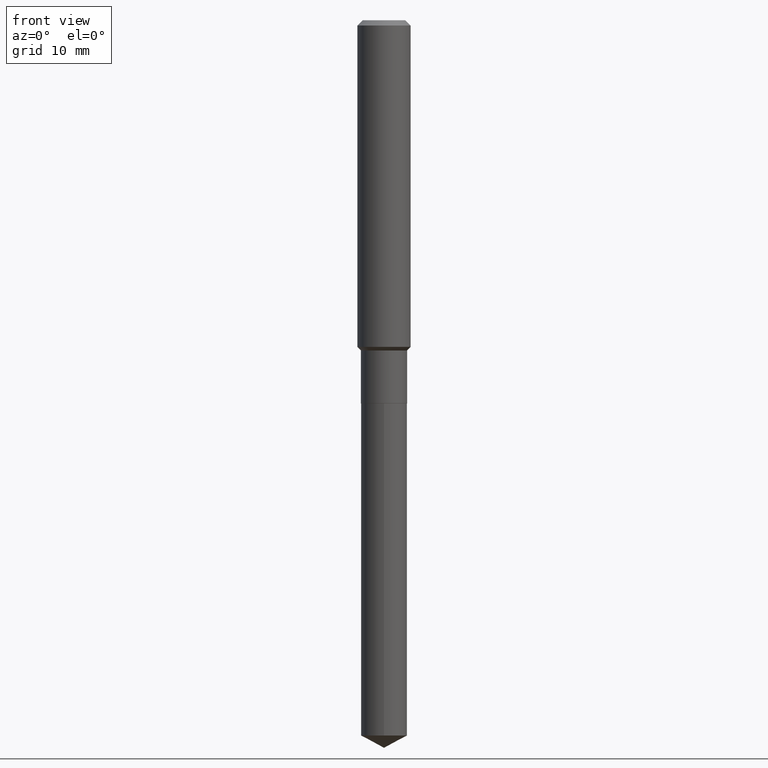
[diagram: clean part render]
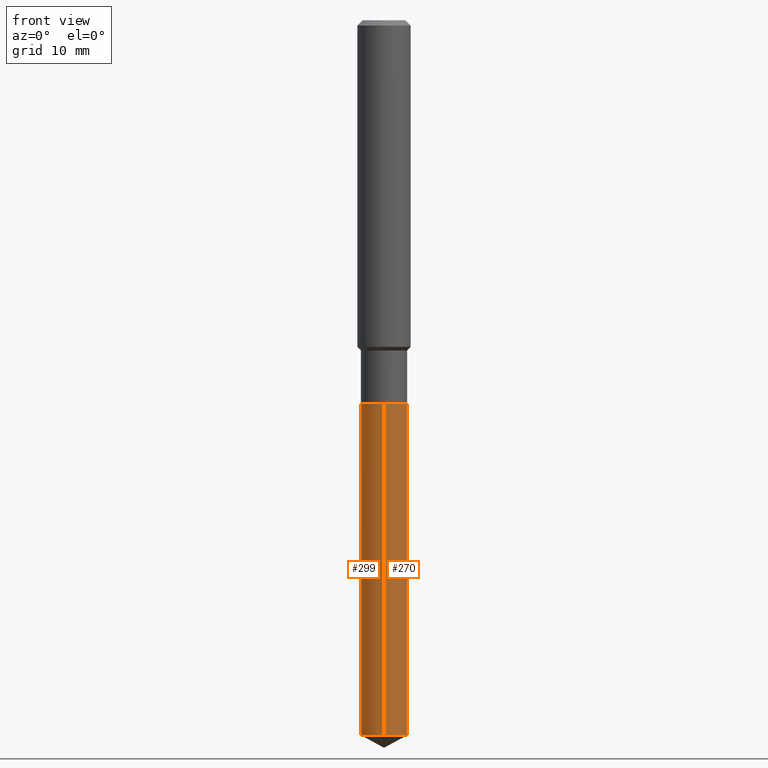
[diagram: same view with one multi-face feature highlighted, each face labeled with its STEP entity id]
A machine part, front view. The highlighted faces form ONE feature: a constant-radius fillet chain: 2 tangent blend faces with common blend radius 2.5997 mm. The faces share edges in the B-rep.
Their STEP definitions:
[1] entity #270 (Cylinder):
#10 = EDGE_CURVE ( 'NONE', #281, #252, #254, .T. ) ;
#27 = CARTESIAN_POINT ( 'NONE',  ( 4.159008798679061688E-29, -5.937962312970537319E-15, -1.700699999999999878 ) ) ;
#49 = DIRECTION ( 'NONE',  ( -2.445459379271598071E-29, 3.491494838719879691E-15, 1.000000000000000000 ) ) ;
#51 = DIRECTION ( 'NONE',  ( -6.982962677686265922E-15, -1.000000000000000000, 2.669123589315352370E-15 ) ) ;
#59 = EDGE_LOOP ( 'NONE', ( #205, #182, #116, #330 ) ) ;
#62 = DIRECTION ( 'NONE',  ( -2.445459379271598071E-29, 3.491494838719879691E-15, 1.000000000000000000 ) ) ;
#71 = CARTESIAN_POINT ( 'NONE',  ( 7.272404900505040294E-16, 0.1023499999999940568, -1.700700000000000323 ) ) ;
#75 = AXIS2_PLACEMENT_3D ( 'NONE', #458, #49, #277 ) ;
#116 = ORIENTED_EDGE ( 'NONE', *, *, #10, .F. ) ;
#123 = DIRECTION ( 'NONE',  ( -2.445459379271598071E-29, 3.491494838719879691E-15, 1.000000000000000000 ) ) ;
#146 = CYLINDRICAL_SURFACE ( 'NONE', #230, 0.1023499999999999965 ) ;
#175 = FACE_OUTER_BOUND ( 'NONE', #59, .T. ) ;
#182 = ORIENTED_EDGE ( 'NONE', *, *, #368, .T. ) ;
#183 = DIRECTION ( 'NONE',  ( -6.982962677686265922E-15, -1.000000000000000000, 2.669123589315352370E-15 ) ) ;
#185 = CARTESIAN_POINT ( 'NONE',  ( 7.272404900505402184E-16, 0.1023499999999940568, -1.700700000000000323 ) ) ;
#190 = CARTESIAN_POINT ( 'NONE',  ( -7.147062300611113976E-16, -0.1023500000000110433, -3.173879539669447247 ) ) ;
#205 = ORIENTED_EDGE ( 'NONE', *, *, #459, .T. ) ;
#230 = AXIS2_PLACEMENT_3D ( 'NONE', #27, #319, #183 ) ;
#241 = CARTESIAN_POINT ( 'NONE',  ( 4.159008798679061688E-29, -5.937962312970537319E-15, -1.700699999999999878 ) ) ;
#252 = VERTEX_POINT ( 'NONE', #185 ) ;
#254 = CIRCLE ( 'NONE', #360, 0.1023499999999999965 ) ;
#263 = LINE ( 'NONE', #71, #377 ) ;
#270 = ADVANCED_FACE ( 'NONE', ( #175 ), #146, .T. ) ;
#277 = DIRECTION ( 'NONE',  ( -6.982962677686265922E-15, -1.000000000000000000, 5.338247178630704739E-15 ) ) ;
#281 = VERTEX_POINT ( 'NONE', #473 ) ;
#301 = VERTEX_POINT ( 'NONE', #190 ) ;
#309 = LINE ( 'NONE', #456, #356 ) ;
#319 = DIRECTION ( 'NONE',  ( -2.445459379271598071E-29, 3.491494838719879691E-15, 1.000000000000000000 ) ) ;
#330 = ORIENTED_EDGE ( 'NONE', *, *, #449, .F. ) ;
#356 = VECTOR ( 'NONE', #123, 39.37007874015748143 ) ;
#360 = AXIS2_PLACEMENT_3D ( 'NONE', #241, #383, #51 ) ;
#362 = CIRCLE ( 'NONE', #75, 0.1023499999999999965 ) ;
#368 = EDGE_CURVE ( 'NONE', #450, #252, #263, .T. ) ;
#377 = VECTOR ( 'NONE', #62, 39.37007874015748143 ) ;
#382 = CARTESIAN_POINT ( 'NONE',  ( 7.272404900505398240E-16, 0.1023499999999888804, -3.173879539669448135 ) ) ;
#383 = DIRECTION ( 'NONE',  ( -2.445459379271598071E-29, 3.491494838719879691E-15, 1.000000000000000000 ) ) ;
#449 = EDGE_CURVE ( 'NONE', #301, #281, #309, .T. ) ;
#450 = VERTEX_POINT ( 'NONE', #382 ) ;
#456 = CARTESIAN_POINT ( 'NONE',  ( -7.147062300611476852E-16, -0.1023500000000059501, -1.700699999999999656 ) ) ;
#458 = CARTESIAN_POINT ( 'NONE',  ( 7.761609521314728506E-29, -1.108156107223414240E-14, -3.173879539669447691 ) ) ;
#459 = EDGE_CURVE ( 'NONE', #301, #450, #362, .T. ) ;
#473 = CARTESIAN_POINT ( 'NONE',  ( -7.147062300611476852E-16, -0.1023500000000059501, -1.700699999999999656 ) ) ;
[2] entity #299 (Cylinder):
#33 = CYLINDRICAL_SURFACE ( 'NONE', #394, 0.1023499999999999965 ) ;
#42 = ORIENTED_EDGE ( 'NONE', *, *, #346, .F. ) ;
#62 = DIRECTION ( 'NONE',  ( -2.445459379271598071E-29, 3.491494838719879691E-15, 1.000000000000000000 ) ) ;
#71 = CARTESIAN_POINT ( 'NONE',  ( 7.272404900505040294E-16, 0.1023499999999940568, -1.700700000000000323 ) ) ;
#90 = DIRECTION ( 'NONE',  ( -6.982962677686265922E-15, -1.000000000000000000, 5.338247178630704739E-15 ) ) ;
#92 = DIRECTION ( 'NONE',  ( -2.445459379271598071E-29, 3.491494838719879691E-15, 1.000000000000000000 ) ) ;
#123 = DIRECTION ( 'NONE',  ( -2.445459379271598071E-29, 3.491494838719879691E-15, 1.000000000000000000 ) ) ;
#144 = AXIS2_PLACEMENT_3D ( 'NONE', #225, #366, #192 ) ;
#185 = CARTESIAN_POINT ( 'NONE',  ( 7.272404900505402184E-16, 0.1023499999999940568, -1.700700000000000323 ) ) ;
#190 = CARTESIAN_POINT ( 'NONE',  ( -7.147062300611113976E-16, -0.1023500000000110433, -3.173879539669447247 ) ) ;
#192 = DIRECTION ( 'NONE',  ( -6.982962677686265922E-15, -1.000000000000000000, 2.669123589315352370E-15 ) ) ;
#199 = ORIENTED_EDGE ( 'NONE', *, *, #441, .T. ) ;
#225 = CARTESIAN_POINT ( 'NONE',  ( 4.159008798679061688E-29, -5.937962312970537319E-15, -1.700699999999999878 ) ) ;
#252 = VERTEX_POINT ( 'NONE', #185 ) ;
#255 = AXIS2_PLACEMENT_3D ( 'NONE', #413, #92, #90 ) ;
#263 = LINE ( 'NONE', #71, #377 ) ;
#278 = CIRCLE ( 'NONE', #144, 0.1023499999999999965 ) ;
#281 = VERTEX_POINT ( 'NONE', #473 ) ;
#291 = ORIENTED_EDGE ( 'NONE', *, *, #449, .T. ) ;
#293 = FACE_OUTER_BOUND ( 'NONE', #371, .T. ) ;
#296 = CIRCLE ( 'NONE', #255, 0.1023499999999999965 ) ;
#299 = ADVANCED_FACE ( 'NONE', ( #293 ), #33, .T. ) ;
#301 = VERTEX_POINT ( 'NONE', #190 ) ;
#309 = LINE ( 'NONE', #456, #356 ) ;
#327 = CARTESIAN_POINT ( 'NONE',  ( 4.159008798679061688E-29, -5.937962312970537319E-15, -1.700699999999999878 ) ) ;
#331 = DIRECTION ( 'NONE',  ( -2.445459379271598071E-29, 3.491494838719879691E-15, 1.000000000000000000 ) ) ;
#346 = EDGE_CURVE ( 'NONE', #252, #281, #278, .T. ) ;
#356 = VECTOR ( 'NONE', #123, 39.37007874015748143 ) ;
#366 = DIRECTION ( 'NONE',  ( -2.445459379271598071E-29, 3.491494838719879691E-15, 1.000000000000000000 ) ) ;
#368 = EDGE_CURVE ( 'NONE', #450, #252, #263, .T. ) ;
#371 = EDGE_LOOP ( 'NONE', ( #481, #199, #291, #42 ) ) ;
#377 = VECTOR ( 'NONE', #62, 39.37007874015748143 ) ;
#382 = CARTESIAN_POINT ( 'NONE',  ( 7.272404900505398240E-16, 0.1023499999999888804, -3.173879539669448135 ) ) ;
#394 = AXIS2_PLACEMENT_3D ( 'NONE', #327, #331, #443 ) ;
#413 = CARTESIAN_POINT ( 'NONE',  ( 7.761609521314728506E-29, -1.108156107223414240E-14, -3.173879539669447691 ) ) ;
#441 = EDGE_CURVE ( 'NONE', #450, #301, #296, .T. ) ;
#443 = DIRECTION ( 'NONE',  ( -6.982962677686265922E-15, -1.000000000000000000, 2.669123589315352370E-15 ) ) ;
#449 = EDGE_CURVE ( 'NONE', #301, #281, #309, .T. ) ;
#450 = VERTEX_POINT ( 'NONE', #382 ) ;
#456 = CARTESIAN_POINT ( 'NONE',  ( -7.147062300611476852E-16, -0.1023500000000059501, -1.700699999999999656 ) ) ;
#473 = CARTESIAN_POINT ( 'NONE',  ( -7.147062300611476852E-16, -0.1023500000000059501, -1.700699999999999656 ) ) ;
#481 = ORIENTED_EDGE ( 'NONE', *, *, #368, .F. ) ;